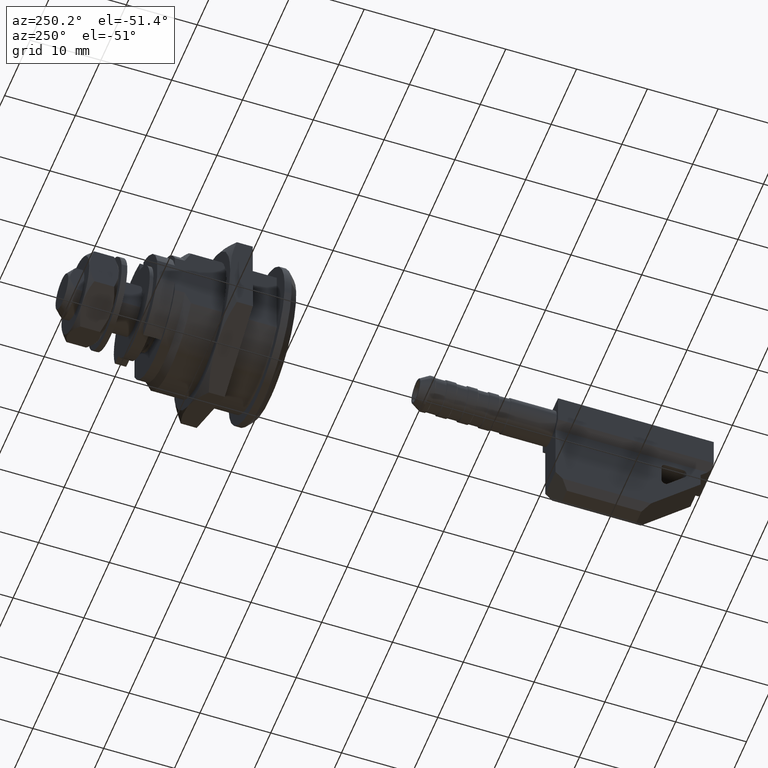
[diagram: clean part render]
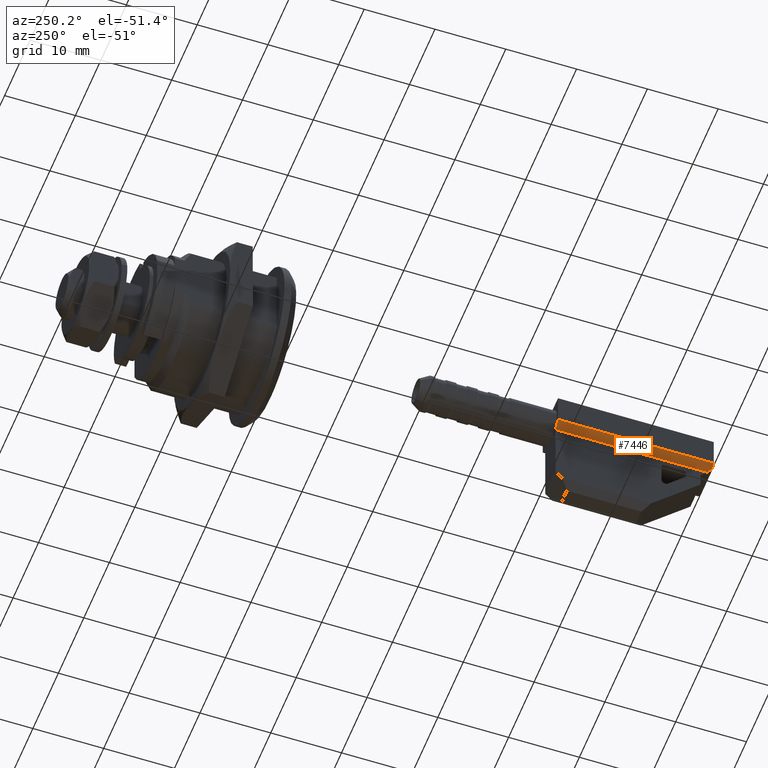
[diagram: same view with one face highlighted and labeled with its STEP entity id]
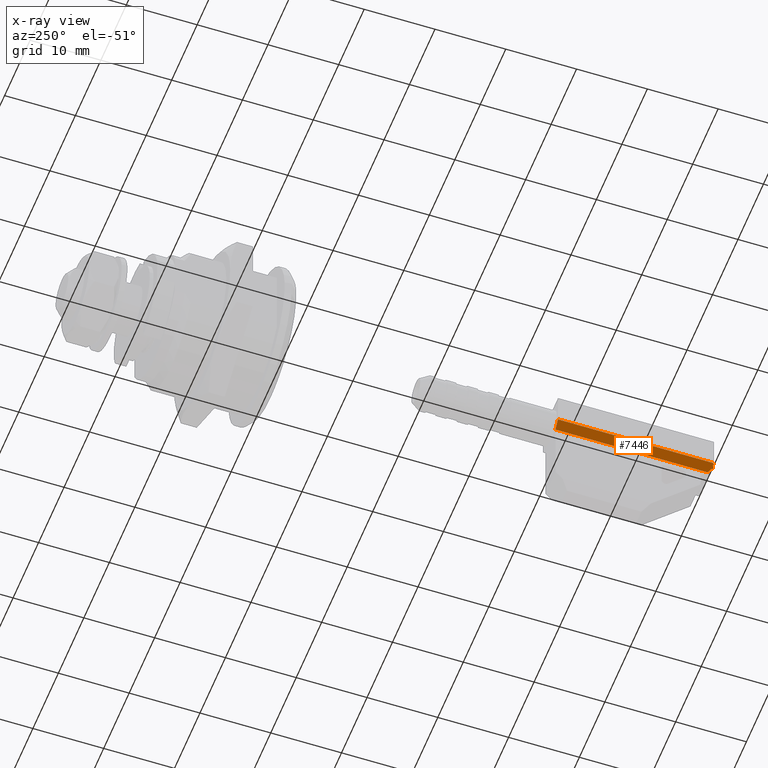
[diagram: x-ray of the same camera — body ghosted, the highlighted face saturated]
A machine part, auxiliary view. The second image highlights one B-rep face of the part: STEP entity #7446.
The next image is the same camera in x-ray: the body ghosted, the highlighted face saturated — about 0% of this face is hidden behind the body in this view.
In plain terms, the highlighted face is a freeform B-spline surface patch.
Its self-contained STEP definition (entity closure, byte-faithful):
#7404=CARTESIAN_POINT('',(-64.598899957359734,3.049949998061866,-1.450050001938031));
#7405=CARTESIAN_POINT('',(-64.598899957359734,1.950049975116101,-2.549950024883800));
#7406=CARTESIAN_POINT('',(-40.401099452554277,3.049949998061866,-1.450050001938031));
#7407=CARTESIAN_POINT('',(-40.401099452554277,1.950049975116101,-2.549950024883800));
#7408=B_SPLINE_SURFACE_WITH_KNOTS('',1,1,((#7404,#7406),(#7405,#7407)),.UNSPECIFIED.,.F.,.F.,.U.,(2,2),(2,2),(0.041708334948495,0.958291687403247),(0.0,24.197800504805450),.UNSPECIFIED.);
#7409=CARTESIAN_POINT('',(-63.0,2.0,-2.499999999999901));
#7410=VERTEX_POINT('',#7409);
#7411=CARTESIAN_POINT('',(-41.500000000000000,2.0,-2.499999999999901));
#7412=VERTEX_POINT('',#7411);
#7413=CARTESIAN_POINT('',(-63.0,2.0,-2.499999999999901));
#7414=CARTESIAN_POINT('',(-41.500000000000000,2.0,-2.499999999999901));
#7415=QUASI_UNIFORM_CURVE('',1,(#7413,#7414),.UNSPECIFIED.,.F.,.U.);
#7416=EDGE_CURVE('',#7410,#7412,#7415,.T.);
#7417=ORIENTED_EDGE('',*,*,#7416,.F.);
#7418=CARTESIAN_POINT('',(-63.500000000000000,2.499999999999855,-2.000000000000070));
#7419=VERTEX_POINT('',#7418);
#7420=CARTESIAN_POINT('',(-63.0,2.0,-2.499999999999901));
#7421=CARTESIAN_POINT('',(-63.500000000000000,2.499999999999855,-2.000000000000070));
#7422=QUASI_UNIFORM_CURVE('',1,(#7420,#7421),.UNSPECIFIED.,.F.,.U.);
#7423=EDGE_CURVE('',#7410,#7419,#7422,.T.);
#7424=ORIENTED_EDGE('',*,*,#7423,.T.);
#7425=CARTESIAN_POINT('',(-63.500000000000000,3.0,-1.499999999999782));
#7426=VERTEX_POINT('',#7425);
#7427=CARTESIAN_POINT('',(-63.500000000000000,3.0,-1.499999999999782));
#7428=CARTESIAN_POINT('',(-63.500000000000000,2.499999999999855,-2.000000000000070));
#7429=QUASI_UNIFORM_CURVE('',1,(#7427,#7428),.UNSPECIFIED.,.F.,.U.);
#7430=EDGE_CURVE('',#7426,#7419,#7429,.T.);
#7431=ORIENTED_EDGE('',*,*,#7430,.F.);
#7432=CARTESIAN_POINT('',(-41.500000000000000,3.0,-1.499999999999900));
#7433=VERTEX_POINT('',#7432);
#7434=CARTESIAN_POINT('',(-41.500000000000000,3.0,-1.499999999999900));
#7435=CARTESIAN_POINT('',(-63.500000000000000,3.0,-1.499999999999782));
#7436=QUASI_UNIFORM_CURVE('',1,(#7434,#7435),.UNSPECIFIED.,.F.,.U.);
#7437=EDGE_CURVE('',#7433,#7426,#7436,.T.);
#7438=ORIENTED_EDGE('',*,*,#7437,.F.);
#7439=CARTESIAN_POINT('',(-41.500000000000000,2.0,-2.499999999999901));
#7440=CARTESIAN_POINT('',(-41.500000000000000,3.0,-1.499999999999900));
#7441=QUASI_UNIFORM_CURVE('',1,(#7439,#7440),.UNSPECIFIED.,.F.,.U.);
#7442=EDGE_CURVE('',#7412,#7433,#7441,.T.);
#7443=ORIENTED_EDGE('',*,*,#7442,.F.);
#7444=EDGE_LOOP('',(#7417,#7424,#7431,#7438,#7443));
#7445=FACE_OUTER_BOUND('',#7444,.T.);
#7446=ADVANCED_FACE('',(#7445),#7408,.F.);